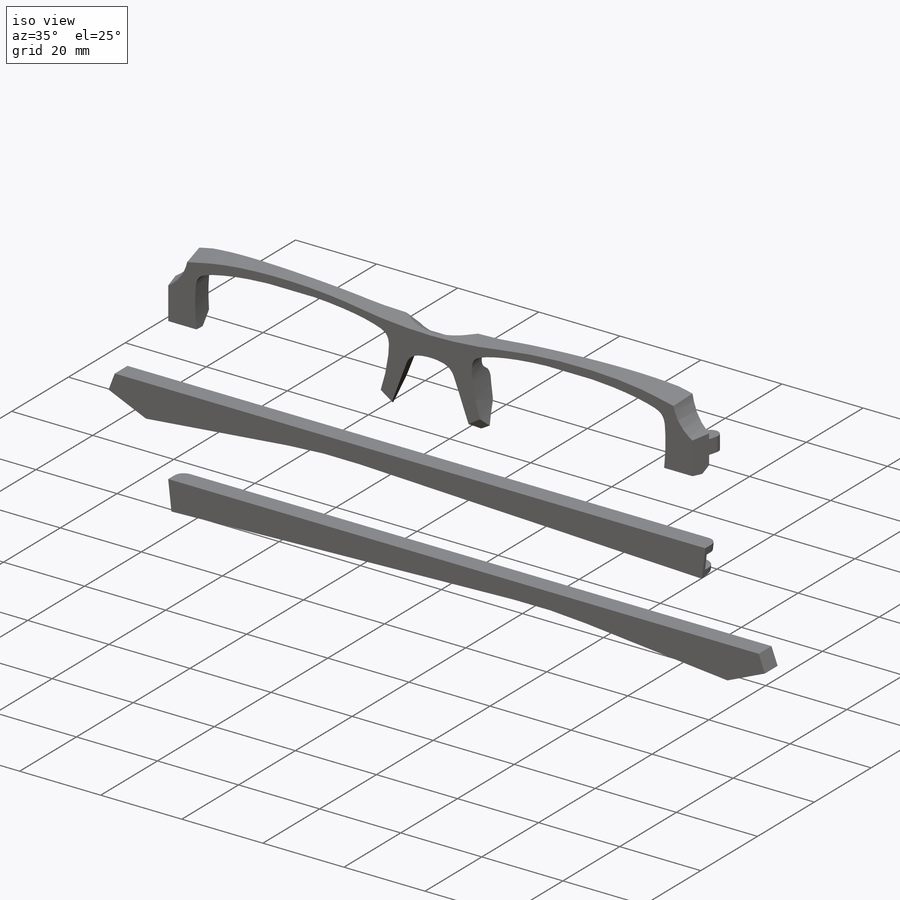
[diagram: iso view]
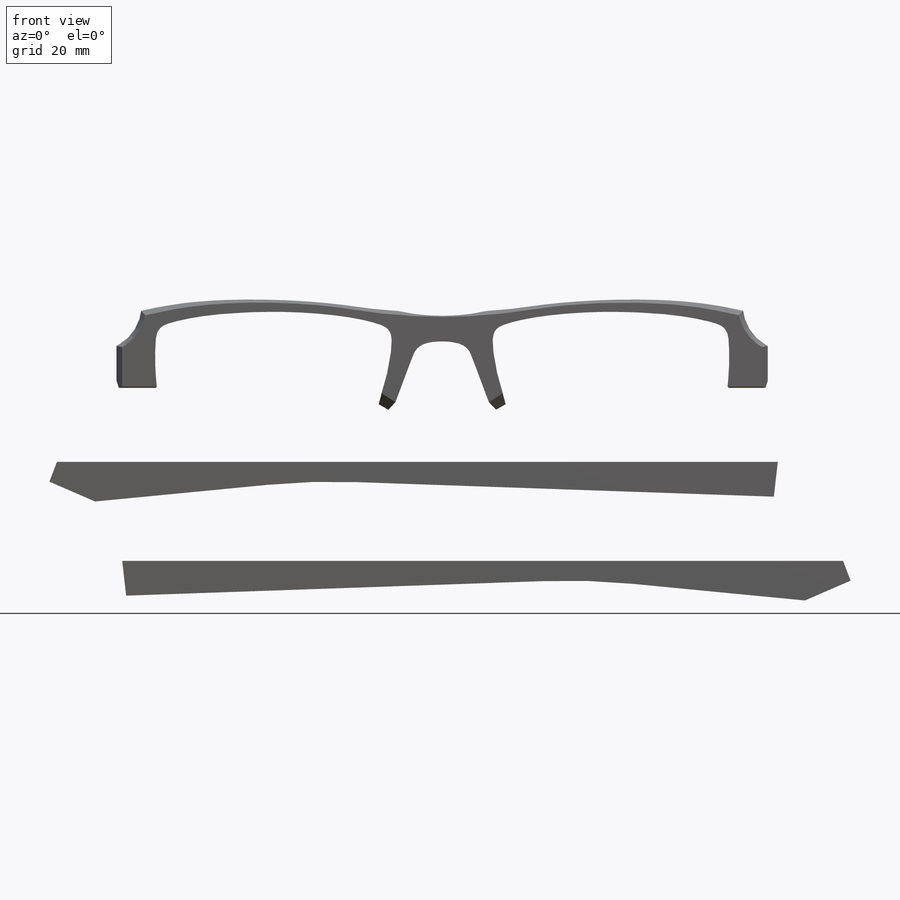
[diagram: front view]
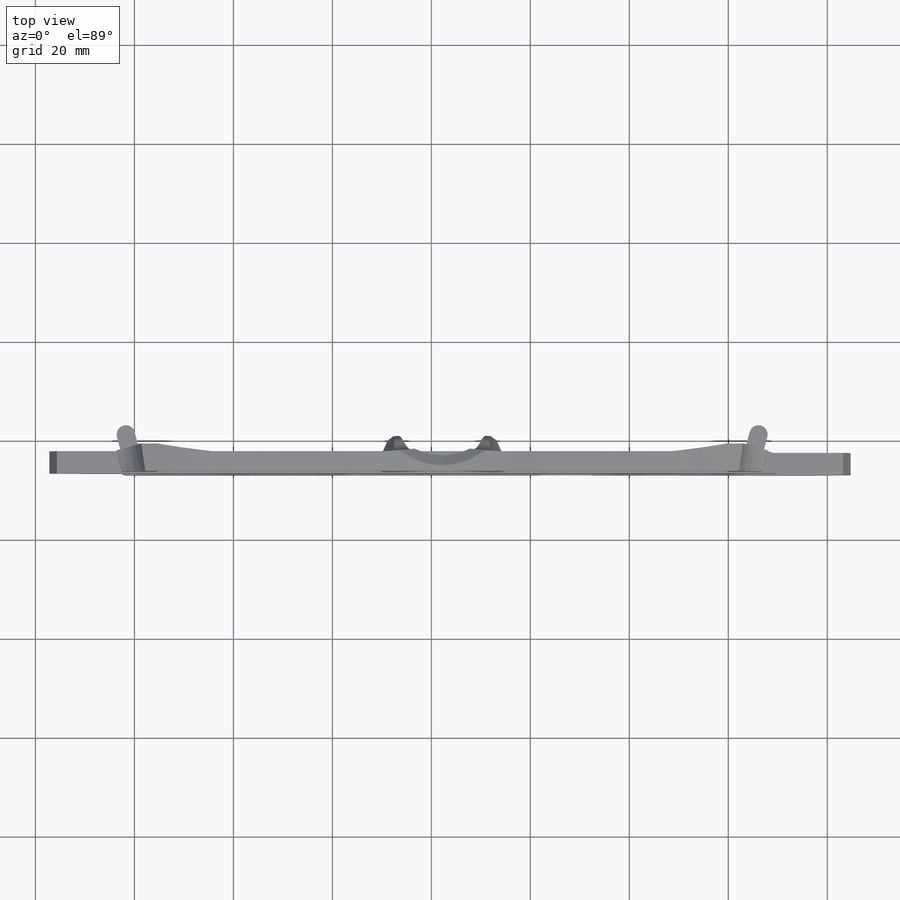
[diagram: top view]
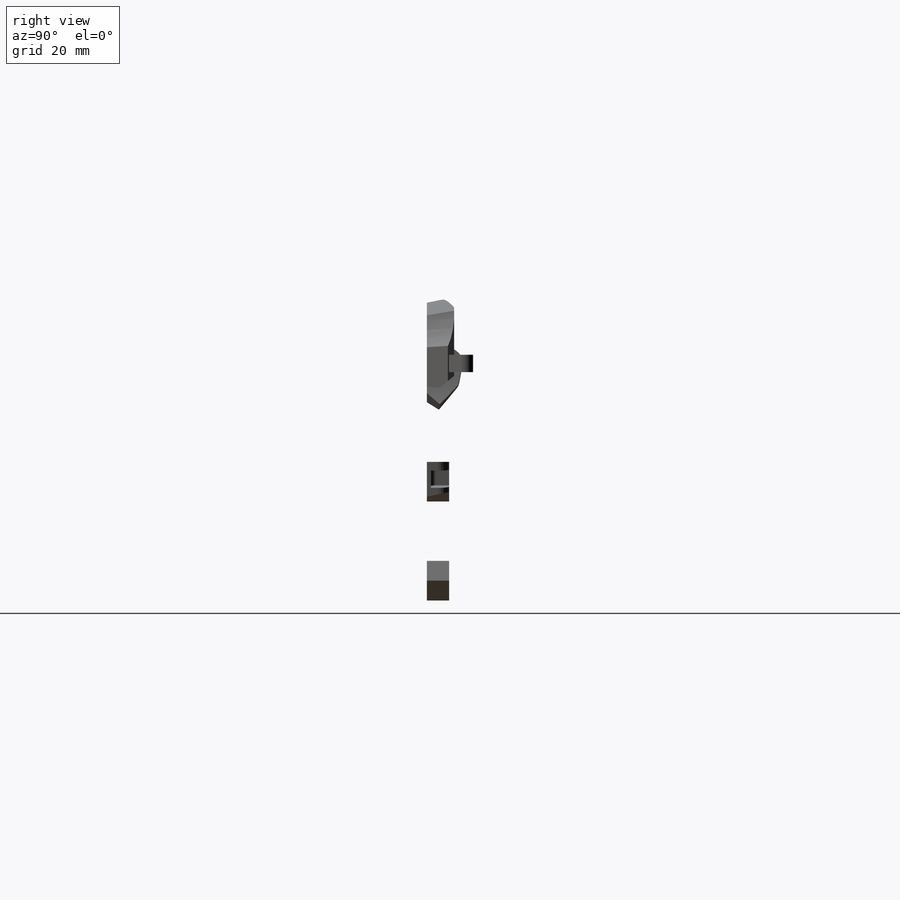
[diagram: right view]
SOLIDWORKS PART (.sldprt)
format: sldprt  version: not decoded by parser v0  size: 1,239,552 bytes
history: native  units: mm
features: sketch x20, cut_extrude x15, plane x6, move_body x5, extrude x4, mirror x4, fillet x4, chamfer x3, material x1 + 1 further entry (+13 scaffold rows collapsed; 2 parser-record rows omitted)
feature tree (78):
  scaffold x13  (default folders/planes/origin — collapsed)
  material  "Matériau <non spécifié>"
  plane  "Plan de face"
  plane  "Plan de dessus"
  plane  "Plan de droite"
  sketch  "Esquisse1"  dims[c1.D2=2.0mm c1.D1=~49.200276mm c2.D2=0.7mm]
  extrude  "Extrusion1"  Depth=7mm
  mirror  "Symétrie1"
  sketch  "Esquisse2"
  cut_extrude  "Extrusion3"  [1 undecoded]
  fillet  "Congé1"  Radius=3.5mm
  sketch  "Esquisse3"  dims[D1=10.0mm]
  cut_extrude  "Extrusion5"  [1 undecoded]
  sketch  "Esquisse4"  dims[D2=5.0mm D1=4.5mm]
  sketch  "Esquisse5"  dims[c1.D5=12.0mm c1.D1=3.0mm c1.D2=5.5mm c1.D3=~5.053452mm c2.D3=15.0deg c2.D4=5.0mm c2.D6=4.5mm]
  cut_extrude  "Extrusion6"  [1 undecoded]
  sketch  "Esquisse6"  dims[D1=0.0mm]
  extrude  "Extrusion7"  Depth=10mm
  plane  "Plan1"
  sketch  "Esquisse7"
  cut_extrude  "Extrusion8"  Depth=10mm
  sketch  "Esquisse8"
  cut_extrude  "Extrusion9"  Depth=10mm
  fillet  "Congé3"  Radius=2.5mm
  sketch  "Esquisse10"  dims[D1=0.0mm]
  chamfer  "Chanfrein1"  Distance=10mm Angle=6deg
  cut_extrude  "Extrusion12"  Depth=10mm
  sketch  "Esquisse11"
  cut_extrude  "Extrusion13"  Depth=10mm
  fillet  "Congé5"  Radius=1mm
  sketch  "Esquisse13"  dims[D1=1.2mm]
  cut_extrude  "Extrusion14"  Depth=10mm
  sketch  "Esquisse14"
  cut_extrude  "Extrusion15"  Depth=10mm
  sketch  "Esquisse15"
  cut_extrude  "Extrusion16"  Depth=36mm
  mirror  "Symétrie2"
  sketch  "Esquisse17"  dims[c1.D1=~7.949782mm c2.D1=96.5deg c2.D2=90.0mm c2.D3=4.0mm c2.D4=8.0mm]
  extrude  "Extrusion17"  Depth=4.5mm
  move_body  "Corps-Déplacer/Copier1"
  "Coïncidente1"
  move_body  "Coïncidente2"
  plane  "Plan2"
  sketch  "Esquisse18"
  cut_extrude  "Extrusion18"  Depth=4.5mm
  plane  "Plan3"
  sketch  "Esquisse21"  dims[D1=0.0mm]
  cut_extrude  "Extrusion20"  Depth=10.5mm
  sketch  "Esquisse22"  dims[D1=3.5mm]
  cut_extrude  "Extrusion22"  Depth=4.5mm
  fillet  "Congé6"  Radius=1mm
  sketch  "Esquisse23"  dims[D1=0.0mm]
  extrude  "Extrusion24"  [1 undecoded]
  sketch  "Esquisse24"
  cut_extrude  "Extrusion25"  Depth=4.5mm
  sketch  "Esquisse25"
  cut_extrude  "Extrusion27"  Depth=28.5mm
  mirror  "Symétrie4"
  mirror  "Symétrie3"
  chamfer  "Corps-Déplacer/Copier2"  [1 undecoded]
  move_body  "Coïncidente3"
  parser-record x2  (decoder bookkeeping rows leaked as tree rows — omitted from the tree; the rows remain in map.json)
  chamfer  "Corps-Déplacer/Copier3"  [1 undecoded]
  move_body  "Coïncidente6"
  move_body  "Coïncidente7"
decode coverage: 31 of 55 modeling features carry decoded parameters; 1 rows unclassified (native names shown)
note: ~ marks probable driven/reference dimensions
note: 6 parameter values undecoded
summary: no parameter record found for 6 features
note: suppression state not decoded; provenance and decode notes live in map.json
